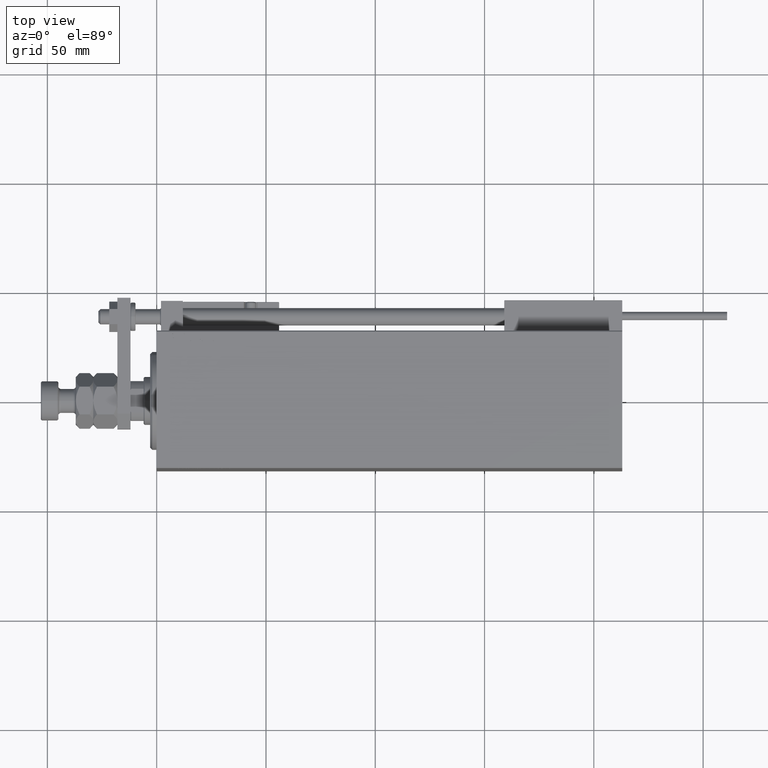
[diagram: clean part render]
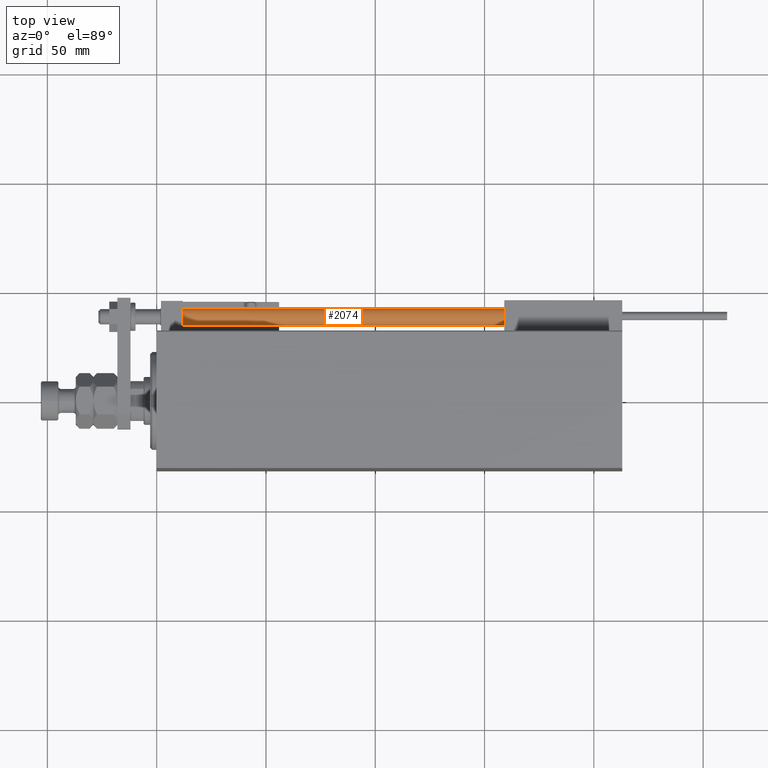
[diagram: same view with one face highlighted and labeled with its STEP entity id]
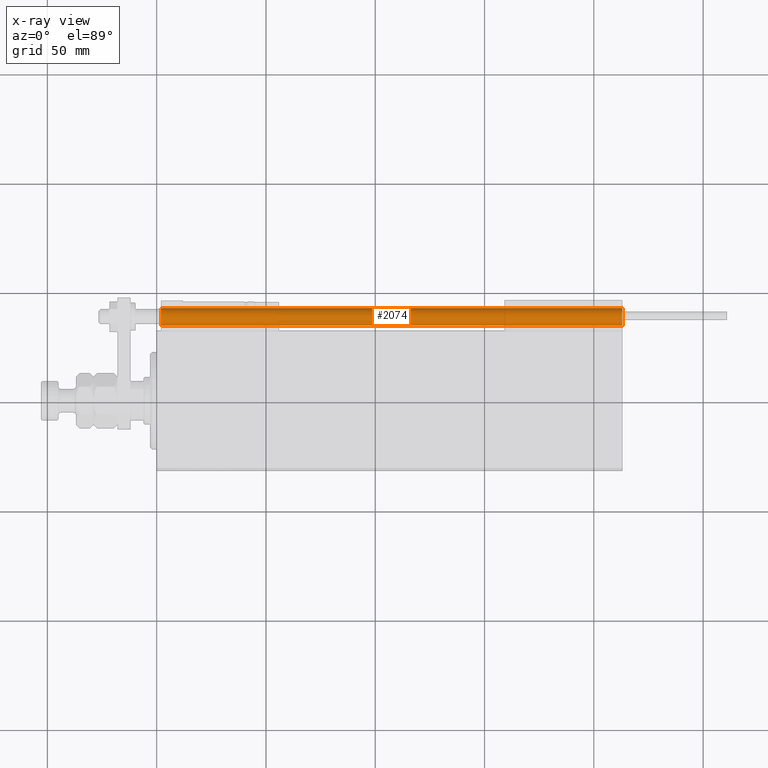
[diagram: x-ray of the same camera — body ghosted, the highlighted face saturated]
A machine part, top view. The second image highlights one B-rep face of the part: STEP entity #2074.
The next image is the same camera in x-ray: the body ghosted, the highlighted face saturated — about 0% of this face is hidden behind the body in this view.
In plain terms, the highlighted cylindrical surface (edge-blend (fillet) strip) has radius 4 mm, axis along (-1, 0, 0).
Its self-contained STEP definition (entity closure, byte-faithful):
#479 = EDGE_LOOP ( 'NONE', ( #42038, #24472, #30001, #49719 ) ) ;
#939 = DIRECTION ( 'NONE',  ( -0.000000000000000000, -0.000000000000000000, 1.000000000000000000 ) ) ;
#2074 = ADVANCED_FACE ( 'NONE', ( #6362 ), #45839, .T. ) ;
#3020 = VECTOR ( 'NONE', #13750, 1000.000000000000000 ) ;
#5885 = EDGE_CURVE ( 'NONE', #22669, #22849, #22996, .T. ) ;
#6103 = CARTESIAN_POINT ( 'NONE',  ( 0.000000000000000000, 0.000000000000000000, 213.0000000000000000 ) ) ;
#6362 = FACE_OUTER_BOUND ( 'NONE', #479, .T. ) ;
#6444 = CARTESIAN_POINT ( 'NONE',  ( 4.000000000000000000, 4.898587196589412829E-16, 213.0000000000000000 ) ) ;
#9917 = VERTEX_POINT ( 'NONE', #11439 ) ;
#10753 = CARTESIAN_POINT ( 'NONE',  ( -4.000000000000000000, 0.000000000000000000, 213.0000000000000000 ) ) ;
#11439 = CARTESIAN_POINT ( 'NONE',  ( -4.000000000000000000, 0.000000000000000000, 2.000000000000029310 ) ) ;
#13321 = CIRCLE ( 'NONE', #20846, 4.000000000000000000 ) ;
#13750 = DIRECTION ( 'NONE',  ( -0.000000000000000000, -0.000000000000000000, -1.000000000000000000 ) ) ;
#16000 = CARTESIAN_POINT ( 'NONE',  ( 4.000000000000000000, 4.898587196589412829E-16, 213.0000000000000000 ) ) ;
#18373 = EDGE_CURVE ( 'NONE', #37741, #9917, #13321, .T. ) ;
#20846 = AXIS2_PLACEMENT_3D ( 'NONE', #32857, #939, #28921 ) ;
#22035 = DIRECTION ( 'NONE',  ( -0.000000000000000000, -0.000000000000000000, -1.000000000000000000 ) ) ;
#22316 = DIRECTION ( 'NONE',  ( 0.000000000000000000, 0.000000000000000000, 1.000000000000000000 ) ) ;
#22371 = LINE ( 'NONE', #6444, #3020 ) ;
#22669 = VERTEX_POINT ( 'NONE', #16000 ) ;
#22849 = VERTEX_POINT ( 'NONE', #10753 ) ;
#22996 = CIRCLE ( 'NONE', #31352, 4.000000000000000000 ) ;
#24472 = ORIENTED_EDGE ( 'NONE', *, *, #40255, .T. ) ;
#24666 = AXIS2_PLACEMENT_3D ( 'NONE', #6103, #22035, #38761 ) ;
#25121 = LINE ( 'NONE', #25905, #33067 ) ;
#25722 = DIRECTION ( 'NONE',  ( 1.000000000000000000, 0.000000000000000000, 0.000000000000000000 ) ) ;
#25905 = CARTESIAN_POINT ( 'NONE',  ( -4.000000000000000000, 0.000000000000000000, 213.0000000000000000 ) ) ;
#26247 = CARTESIAN_POINT ( 'NONE',  ( 0.000000000000000000, 0.000000000000000000, 213.0000000000000000 ) ) ;
#28921 = DIRECTION ( 'NONE',  ( 1.000000000000000000, 0.000000000000000000, 0.000000000000000000 ) ) ;
#30001 = ORIENTED_EDGE ( 'NONE', *, *, #18373, .T. ) ;
#31352 = AXIS2_PLACEMENT_3D ( 'NONE', #26247, #22316, #25722 ) ;
#32857 = CARTESIAN_POINT ( 'NONE',  ( 0.000000000000000000, 0.000000000000000000, 2.000000000000029310 ) ) ;
#33067 = VECTOR ( 'NONE', #41582, 1000.000000000000000 ) ;
#37741 = VERTEX_POINT ( 'NONE', #39011 ) ;
#38761 = DIRECTION ( 'NONE',  ( -1.000000000000000000, 0.000000000000000000, 0.000000000000000000 ) ) ;
#39011 = CARTESIAN_POINT ( 'NONE',  ( 4.000000000000000000, 4.898587196589412829E-16, 2.000000000000029310 ) ) ;
#39977 = EDGE_CURVE ( 'NONE', #22849, #9917, #25121, .T. ) ;
#40255 = EDGE_CURVE ( 'NONE', #22669, #37741, #22371, .T. ) ;
#41582 = DIRECTION ( 'NONE',  ( -0.000000000000000000, -0.000000000000000000, -1.000000000000000000 ) ) ;
#42038 = ORIENTED_EDGE ( 'NONE', *, *, #5885, .F. ) ;
#45839 = CYLINDRICAL_SURFACE ( 'NONE', #24666, 4.000000000000000000 ) ;
#49719 = ORIENTED_EDGE ( 'NONE', *, *, #39977, .F. ) ;